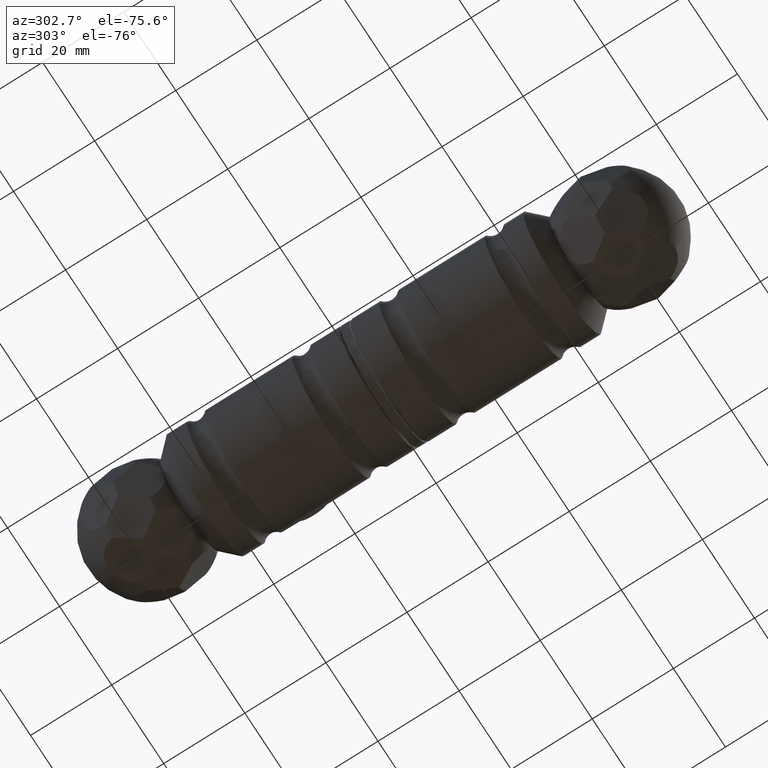
[diagram: clean part render]
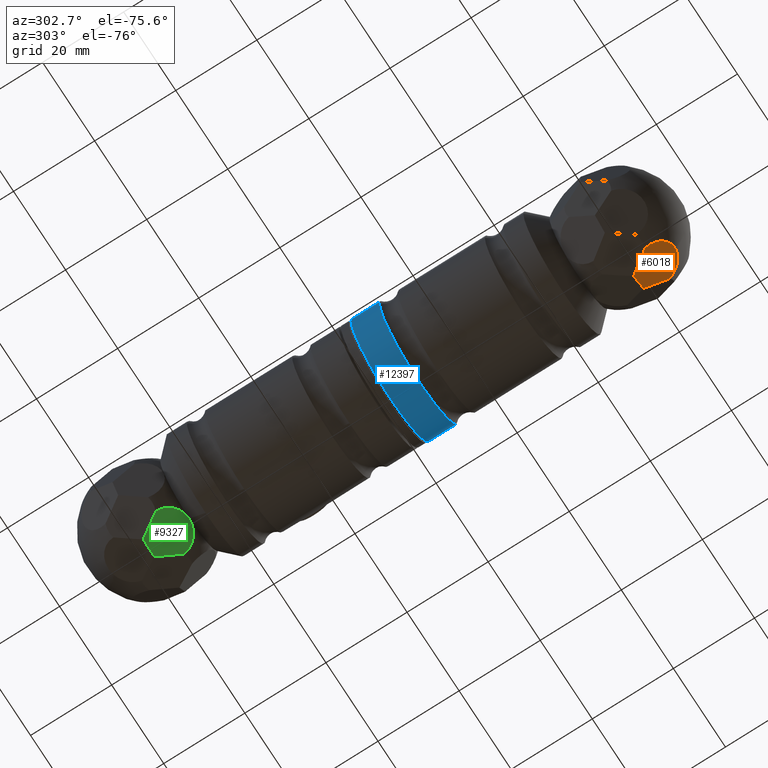
[diagram: same view with three faces highlighted in distinct colors, each labeled with its STEP entity id]
A machine part, auxiliary view with three faces highlighted in distinct colors.
Their STEP definitions:

[orange] entity #6018 — the highlighted planar face has unit normal (0.4698, -0.342, -0.8138).
#551 = AXIS2_PLACEMENT_3D ( 'NONE', #6392, #14671, #7711 ) ;
#901 = CARTESIAN_POINT ( 'NONE',  ( 5.561659592849481193, 56.99999999999999289, 13.93082705991518999 ) ) ;
#1002 = EDGE_CURVE ( 'NONE', #10146, #9258, #1333, .T. ) ;
#1063 = DIRECTION ( 'NONE',  ( -0.4698463103929521045, -0.3420201433256697121, -0.8137976813493744688 ) ) ;
#1162 = CARTESIAN_POINT ( 'NONE',  ( 6.554356029981684095, 61.77118099939307427, 11.35247765482377602 ) ) ;
#1333 = LINE ( 'NONE', #8023, #11870 ) ;
#1484 = CARTESIAN_POINT ( 'NONE',  ( 11.22412204793004520, 62.24024502231203826, 8.459250342631099429 ) ) ;
#1867 = AXIS2_PLACEMENT_3D ( 'NONE', #12185, #2890, #6383 ) ;
#2032 = DIRECTION ( 'NONE',  ( -0.1710100716628341622, 0.9396926207859080948, -0.2961981327260250763 ) ) ;
#2082 = ORIENTED_EDGE ( 'NONE', *, *, #8582, .T. ) ;
#2375 = DIRECTION ( 'NONE',  ( 0.8660254037844397068, 1.386669559958809595E-31, -0.4999999999999978906 ) ) ;
#2378 = DIRECTION ( 'NONE',  ( 0.8660254037844398178, 0.000000000000000000, -0.4999999999999977240 ) ) ;
#2527 = VECTOR ( 'NONE', #2375, 1000.000000000000227 ) ;
#2650 = EDGE_CURVE ( 'NONE', #5540, #10146, #13913, .T. ) ;
#2855 = ORIENTED_EDGE ( 'NONE', *, *, #2650, .F. ) ;
#2890 = DIRECTION ( 'NONE',  ( -0.4698463103929521045, -0.3420201433256697121, -0.8137976813493744688 ) ) ;
#3615 = LINE ( 'NONE', #5202, #11800 ) ;
#3685 = ORIENTED_EDGE ( 'NONE', *, *, #6212, .F. ) ;
#3946 = CIRCLE ( 'NONE', #1867, 5.513392784846721462 ) ;
#4372 = DIRECTION ( 'NONE',  ( -0.5885247359201016826, 0.8084792113654961643, -6.239909953228395968E-15 ) ) ;
#4547 = ORIENTED_EDGE ( 'NONE', *, *, #8056, .F. ) ;
#4784 = AXIS2_PLACEMENT_3D ( 'NONE', #9197, #9104, #2032 ) ;
#5202 = CARTESIAN_POINT ( 'NONE',  ( 3.613609223000790571, 59.63049239088428521, 13.95000000000004370 ) ) ;
#5374 = CARTESIAN_POINT ( 'NONE',  ( 1.713864669725668533, 62.24024502231196010, 13.95000000000002771 ) ) ;
#5540 = VERTEX_POINT ( 'NONE', #5374 ) ;
#5776 = CARTESIAN_POINT ( 'NONE',  ( 7.422639963019459053, 57.00000000000000711, 12.85638954224094554 ) ) ;
#5933 = VERTEX_POINT ( 'NONE', #11290 ) ;
#6016 = VERTEX_POINT ( 'NONE', #13766 ) ;
#6018 = ADVANCED_FACE ( 'NONE', ( #10134 ), #10206, .T. ) ;
#6212 = EDGE_CURVE ( 'NONE', #7509, #6016, #3946, .T. ) ;
#6383 = DIRECTION ( 'NONE',  ( 0.8660254037844250519, 8.180590815034937746E-14, -0.5000000000000236478 ) ) ;
#6392 = CARTESIAN_POINT ( 'NONE',  ( 6.554356029981684095, 61.77118099939307427, 11.35247765482377602 ) ) ;
#6403 = ORIENTED_EDGE ( 'NONE', *, *, #9291, .F. ) ;
#6849 = DIRECTION ( 'NONE',  ( -0.2942623679600598896, -0.8084792113654891699, 0.5096773720623419823 ) ) ;
#6886 = CARTESIAN_POINT ( 'NONE',  ( 9.324377494654791931, 57.02073975945651796, 11.74970443030602496 ) ) ;
#7433 = AXIS2_PLACEMENT_3D ( 'NONE', #1162, #1063, #2378 ) ;
#7509 = VERTEX_POINT ( 'NONE', #901 ) ;
#7711 = DIRECTION ( 'NONE',  ( 0.8660254037844398178, 0.000000000000000000, -0.4999999999999977240 ) ) ;
#8023 = CARTESIAN_POINT ( 'NONE',  ( 10.27424977129241945, 59.63049239088428521, 10.10447738646855953 ) ) ;
#8056 = EDGE_CURVE ( 'NONE', #6016, #5540, #3615, .T. ) ;
#8156 = ORIENTED_EDGE ( 'NONE', *, *, #1002, .F. ) ;
#8582 = EDGE_CURVE ( 'NONE', #7509, #5933, #11446, .T. ) ;
#8890 = CIRCLE ( 'NONE', #7433, 5.513392784846721462 ) ;
#9104 = DIRECTION ( 'NONE',  ( 0.4698463103929521045, 0.3420201433256696566, 0.8137976813493744688 ) ) ;
#9197 = CARTESIAN_POINT ( 'NONE',  ( 6.554356029981684095, 61.77118099939307427, 11.35247765482377602 ) ) ;
#9258 = VERTEX_POINT ( 'NONE', #6886 ) ;
#9291 = EDGE_CURVE ( 'NONE', #9258, #5933, #8890, .T. ) ;
#10134 = FACE_OUTER_BOUND ( 'NONE', #13451, .T. ) ;
#10146 = VERTEX_POINT ( 'NONE', #1484 ) ;
#10206 = PLANE ( 'NONE',  #4784 ) ;
#11290 = CARTESIAN_POINT ( 'NONE',  ( 9.283620333189460894, 57.00000000000000711, 11.78195202456677038 ) ) ;
#11446 = LINE ( 'NONE', #5776, #2527 ) ;
#11800 = VECTOR ( 'NONE', #4372, 1000.000000000000114 ) ;
#11870 = VECTOR ( 'NONE', #6849, 1000.000000000000000 ) ;
#12185 = CARTESIAN_POINT ( 'NONE',  ( 6.554356029981684095, 61.77118099939307427, 11.35247765482377602 ) ) ;
#13451 = EDGE_LOOP ( 'NONE', ( #3685, #2082, #6403, #8156, #2855, #4547 ) ) ;
#13766 = CARTESIAN_POINT ( 'NONE',  ( 5.513353776275911500, 57.02073975945661033, 13.95000000000006501 ) ) ;
#13913 = CIRCLE ( 'NONE', #551, 5.513392784846721462 ) ;
#14671 = DIRECTION ( 'NONE',  ( -0.4698463103929521045, -0.3420201433256697121, -0.8137976813493744688 ) ) ;

[blue] entity #12397 — the highlighted cylindrical surface (bore or boss wall) has radius 15 mm, axis along (0, 1, -0).
#667 = VERTEX_POINT ( 'NONE', #1081 ) ;
#1081 = CARTESIAN_POINT ( 'NONE',  ( 15.00000000000000355, 0.5000000000000143219, 0.000000000000000000 ) ) ;
#1127 = CARTESIAN_POINT ( 'NONE',  ( 15.00000000000000355, 7.500000000000000000, 0.000000000000000000 ) ) ;
#1202 = DIRECTION ( 'NONE',  ( 2.749845802210205696E-18, -1.000000000000000000, 0.000000000000000000 ) ) ;
#2771 = DIRECTION ( 'NONE',  ( 2.749845802210205696E-18, -1.000000000000000000, 0.000000000000000000 ) ) ;
#2907 = FACE_OUTER_BOUND ( 'NONE', #9722, .T. ) ;
#3422 = CARTESIAN_POINT ( 'NONE',  ( -2.062384351657654291E-17, 7.500000000000000000, 0.000000000000000000 ) ) ;
#3859 = ORIENTED_EDGE ( 'NONE', *, *, #11477, .T. ) ;
#5572 = CIRCLE ( 'NONE', #13216, 15.00000000000000355 ) ;
#5801 = CYLINDRICAL_SURFACE ( 'NONE', #6098, 15.00000000000000355 ) ;
#6098 = AXIS2_PLACEMENT_3D ( 'NONE', #9729, #2771, #12216 ) ;
#6167 = FACE_OUTER_BOUND ( 'NONE', #14565, .T. ) ;
#6202 = DIRECTION ( 'NONE',  ( 1.000000000000000000, 0.000000000000000000, 0.000000000000000000 ) ) ;
#6579 = AXIS2_PLACEMENT_3D ( 'NONE', #9816, #13227, #6202 ) ;
#6775 = DIRECTION ( 'NONE',  ( 1.000000000000000000, 0.000000000000000000, 0.000000000000000000 ) ) ;
#8157 = CIRCLE ( 'NONE', #6579, 15.00000000000000355 ) ;
#8484 = VERTEX_POINT ( 'NONE', #1127 ) ;
#9722 = EDGE_LOOP ( 'NONE', ( #13807 ) ) ;
#9729 = CARTESIAN_POINT ( 'NONE',  ( 0.000000000000000000, 0.000000000000000000, 0.000000000000000000 ) ) ;
#9816 = CARTESIAN_POINT ( 'NONE',  ( -1.374922901105133663E-18, 0.5000000000000143219, 0.000000000000000000 ) ) ;
#11477 = EDGE_CURVE ( 'NONE', #8484, #8484, #5572, .T. ) ;
#12186 = EDGE_CURVE ( 'NONE', #667, #667, #8157, .T. ) ;
#12216 = DIRECTION ( 'NONE',  ( 1.000000000000000000, 2.749845802210206081E-18, 0.000000000000000000 ) ) ;
#12397 = ADVANCED_FACE ( 'NONE', ( #2907, #6167 ), #5801, .T. ) ;
#13216 = AXIS2_PLACEMENT_3D ( 'NONE', #3422, #1202, #6775 ) ;
#13227 = DIRECTION ( 'NONE',  ( -2.749845802210205696E-18, 1.000000000000000000, -0.000000000000000000 ) ) ;
#13807 = ORIENTED_EDGE ( 'NONE', *, *, #12186, .T. ) ;
#14565 = EDGE_LOOP ( 'NONE', ( #3859 ) ) ;

[green] entity #9327 — the highlighted planar face has unit normal (0, -0.342, -0.9397).
#98 = DIRECTION ( 'NONE',  ( 0.3420201433256693790, 0.9396926207859082059, -2.526820087036053001E-31 ) ) ;
#126 = DIRECTION ( 'NONE',  ( 0.3420201433256692680, 0.9396926207859082059, -1.332267629550186744E-14 ) ) ;
#542 = ORIENTED_EDGE ( 'NONE', *, *, #5501, .F. ) ;
#565 = CARTESIAN_POINT ( 'NONE',  ( 13.10871205996341793, 52.22881900060691152, 3.731489267250269465E-31 ) ) ;
#1096 = CARTESIAN_POINT ( 'NONE',  ( 14.84527992603896962, 56.99999999999999289, -1.203706215242022408E-32 ) ) ;
#1243 = VERTEX_POINT ( 'NONE', #8384 ) ;
#1717 = DIRECTION ( 'NONE',  ( 0.3420201433256692680, 0.9396926207859082059, 3.286260152890461466E-14 ) ) ;
#2931 = CARTESIAN_POINT ( 'NONE',  ( 14.83773127093100186, 56.97926024054342520, 2.200295569694193709 ) ) ;
#2989 = ORIENTED_EDGE ( 'NONE', *, *, #9332, .T. ) ;
#3121 = CARTESIAN_POINT ( 'NONE',  ( 14.83773127093096988, 56.97926024054353178, -2.200295569693974329 ) ) ;
#3275 = VERTEX_POINT ( 'NONE', #3121 ) ;
#3337 = CARTESIAN_POINT ( 'NONE',  ( 13.88785899429341875, 54.36950760911571479, 3.845522613531550338 ) ) ;
#3415 = VERTEX_POINT ( 'NONE', #7766 ) ;
#3441 = EDGE_CURVE ( 'NONE', #3415, #3275, #7358, .T. ) ;
#3652 = AXIS2_PLACEMENT_3D ( 'NONE', #7034, #14974, #98 ) ;
#3669 = AXIS2_PLACEMENT_3D ( 'NONE', #11703, #7061, #126 ) ;
#4150 = DIRECTION ( 'NONE',  ( -0.9396926207859083169, 0.3420201433256694346, 2.526820087036053439E-31 ) ) ;
#4687 = ORIENTED_EDGE ( 'NONE', *, *, #7631, .F. ) ;
#4716 = PLANE ( 'NONE',  #3652 ) ;
#5481 = VERTEX_POINT ( 'NONE', #2931 ) ;
#5490 = DIRECTION ( 'NONE',  ( 0.3420201433256692680, 0.9396926207859082059, 8.881784197001243449E-16 ) ) ;
#5501 = EDGE_CURVE ( 'NONE', #5481, #1243, #12221, .T. ) ;
#5679 = DIRECTION ( 'NONE',  ( -0.2942623679600528397, -0.8084792113654969414, 0.5096773720623337667 ) ) ;
#5911 = CARTESIAN_POINT ( 'NONE',  ( 12.93798671765584984, 51.75975497768806122, 5.490749657368943382 ) ) ;
#6431 = ORIENTED_EDGE ( 'NONE', *, *, #13867, .F. ) ;
#6884 = VECTOR ( 'NONE', #11420, 1000.000000000000000 ) ;
#6904 = ORIENTED_EDGE ( 'NONE', *, *, #12884, .F. ) ;
#7034 = CARTESIAN_POINT ( 'NONE',  ( 13.10871205996342148, 52.22881900060693994, -1.203706215242022408E-32 ) ) ;
#7061 = DIRECTION ( 'NONE',  ( -0.9396926207859083169, 0.3420201433256694346, 2.526820087036053439E-31 ) ) ;
#7358 = LINE ( 'NONE', #10093, #9348 ) ;
#7602 = DIRECTION ( 'NONE',  ( -0.9396926207859083169, 0.3420201433256694346, 2.526820087036053439E-31 ) ) ;
#7631 = EDGE_CURVE ( 'NONE', #1243, #10999, #11991, .T. ) ;
#7766 = CARTESIAN_POINT ( 'NONE',  ( 12.93798671765575570, 51.75975497768794753, -5.490749657368930059 ) ) ;
#7905 = EDGE_LOOP ( 'NONE', ( #4687, #542, #2989, #6904, #11007, #6431 ) ) ;
#8384 = CARTESIAN_POINT ( 'NONE',  ( 14.84527992603904067, 56.99999999999999289, 2.148875035348545737 ) ) ;
#8886 = DIRECTION ( 'NONE',  ( 0.2942623679600523956, 0.8084792113654895029, 0.5096773720623457571 ) ) ;
#9073 = CIRCLE ( 'NONE', #14177, 5.513392784846733896 ) ;
#9327 = ADVANCED_FACE ( 'NONE', ( #14505 ), #4716, .T. ) ;
#9332 = EDGE_CURVE ( 'NONE', #5481, #13893, #14697, .T. ) ;
#9348 = VECTOR ( 'NONE', #8886, 1000.000000000000114 ) ;
#9771 = CIRCLE ( 'NONE', #3669, 5.513392784846733896 ) ;
#10093 = CARTESIAN_POINT ( 'NONE',  ( 13.88785899429335657, 54.36950760911574321, -3.845522613531476175 ) ) ;
#10160 = CARTESIAN_POINT ( 'NONE',  ( 13.10871205996341793, 52.22881900060691152, 3.731489267250269465E-31 ) ) ;
#10269 = CARTESIAN_POINT ( 'NONE',  ( 14.84527992603897495, 56.99999999999999289, -2.148875035348548401 ) ) ;
#10999 = VERTEX_POINT ( 'NONE', #10269 ) ;
#11007 = ORIENTED_EDGE ( 'NONE', *, *, #3441, .T. ) ;
#11317 = AXIS2_PLACEMENT_3D ( 'NONE', #565, #7602, #1717 ) ;
#11420 = DIRECTION ( 'NONE',  ( 0.000000000000000000, 4.565411374750538205E-34, -1.000000000000000000 ) ) ;
#11703 = CARTESIAN_POINT ( 'NONE',  ( 13.10871205996341793, 52.22881900060691152, 3.731489267250269465E-31 ) ) ;
#11991 = LINE ( 'NONE', #1096, #6884 ) ;
#12221 = CIRCLE ( 'NONE', #11317, 5.513392784846733896 ) ;
#12884 = EDGE_CURVE ( 'NONE', #3415, #13893, #9073, .T. ) ;
#13607 = VECTOR ( 'NONE', #5679, 999.9999999999998863 ) ;
#13867 = EDGE_CURVE ( 'NONE', #10999, #3275, #9771, .T. ) ;
#13893 = VERTEX_POINT ( 'NONE', #5911 ) ;
#14177 = AXIS2_PLACEMENT_3D ( 'NONE', #10160, #4150, #5490 ) ;
#14505 = FACE_OUTER_BOUND ( 'NONE', #7905, .T. ) ;
#14697 = LINE ( 'NONE', #3337, #13607 ) ;
#14974 = DIRECTION ( 'NONE',  ( 0.9396926207859082059, -0.3420201433256693790, -2.526820087036053877E-31 ) ) ;